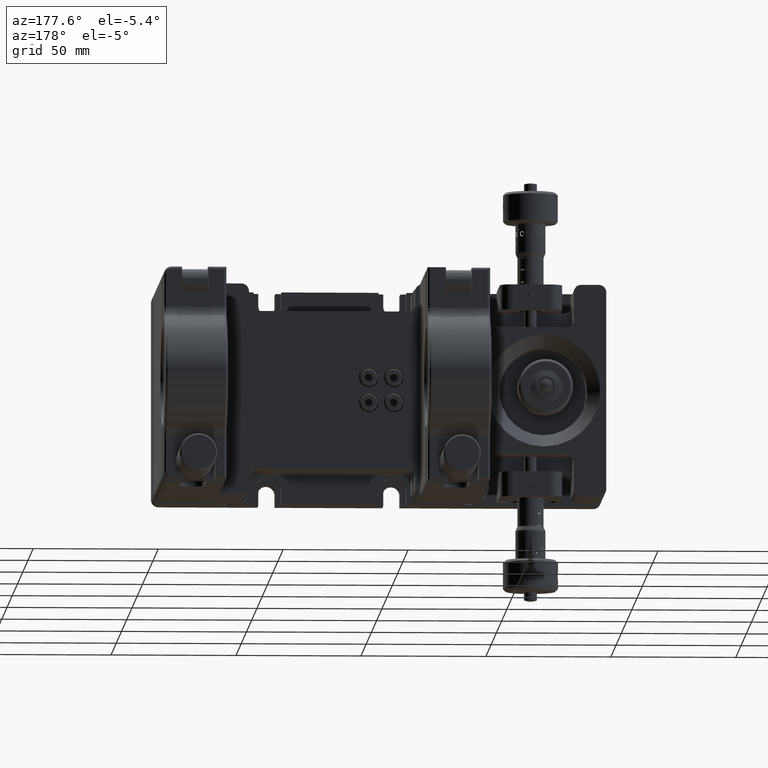
[diagram: clean part render]
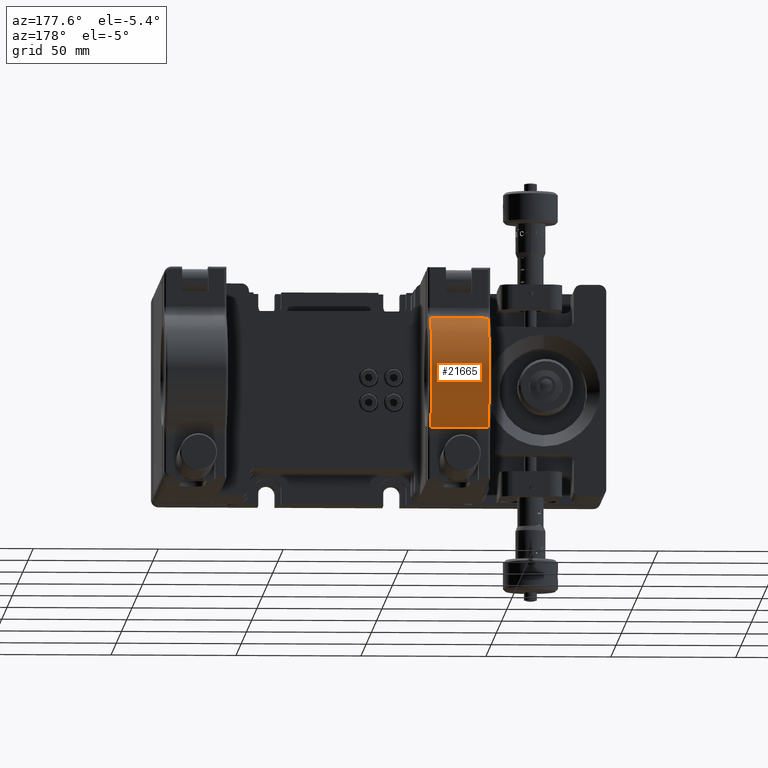
[diagram: same view with one face highlighted and labeled with its STEP entity id]
A machine part, auxiliary view. The second image highlights one B-rep face of the part: STEP entity #21665.
In plain terms, the highlighted cylindrical surface (partial cylindrical patch) has radius 25 mm, axis along (1, 0, -0).
Its self-contained STEP definition (entity closure, byte-faithful):
#1989 = EDGE_CURVE ( 'NONE', #6443, #28217, #40553, .T. ) ;
#3054 = CARTESIAN_POINT ( 'NONE',  ( -39.50000000000003553, 108.2999999999999545, -1.926107624960344001E-13 ) ) ;
#3217 = ORIENTED_EDGE ( 'NONE', *, *, #16254, .T. ) ;
#6443 = VERTEX_POINT ( 'NONE', #25448 ) ;
#7899 = VECTOR ( 'NONE', #47908, 1000.000000000000000 ) ;
#12408 = DIRECTION ( 'NONE',  ( -1.000000000000000000, -8.985754444169092279E-17, 8.951173136040324607E-16 ) ) ;
#15761 = CARTESIAN_POINT ( 'NONE',  ( -39.50000000000006395, 120.3833333333332689, -21.88590997778169722 ) ) ;
#15827 = AXIS2_PLACEMENT_3D ( 'NONE', #42011, #12408, #15888 ) ;
#15888 = DIRECTION ( 'NONE',  ( -9.714451465470121701E-16, -1.665334536937735008E-15, -1.000000000000000000 ) ) ;
#16254 = EDGE_CURVE ( 'NONE', #25030, #18170, #44519, .T. ) ;
#18033 = LINE ( 'NONE', #34982, #7899 ) ;
#18170 = VERTEX_POINT ( 'NONE', #54548 ) ;
#18536 = CARTESIAN_POINT ( 'NONE',  ( -40.50000000000003553, 108.2999999999999545, -1.917156451824303677E-13 ) ) ;
#21665 = ADVANCED_FACE ( 'NONE', ( #41505 ), #36920, .T. ) ;
#22847 = DIRECTION ( 'NONE',  ( 1.000000000000000000, 8.985754444169092279E-17, -8.951173136040324607E-16 ) ) ;
#23457 = DIRECTION ( 'NONE',  ( -1.000000000000000000, -8.985754444169092279E-17, 8.951173136040324607E-16 ) ) ;
#23661 = ORIENTED_EDGE ( 'NONE', *, *, #34378, .T. ) ;
#25030 = VERTEX_POINT ( 'NONE', #15761 ) ;
#25448 = CARTESIAN_POINT ( 'NONE',  ( -16.50000000000001421, 120.3833333333333400, 21.88590997778125313 ) ) ;
#28217 = VERTEX_POINT ( 'NONE', #51224 ) ;
#28399 = ORIENTED_EDGE ( 'NONE', *, *, #1989, .T. ) ;
#32493 = ORIENTED_EDGE ( 'NONE', *, *, #50378, .T. ) ;
#34378 = EDGE_CURVE ( 'NONE', #28217, #25030, #36384, .T. ) ;
#34982 = CARTESIAN_POINT ( 'NONE',  ( -40.50000000000001421, 120.3833333333333400, 21.88590997778127445 ) ) ;
#36384 = LINE ( 'NONE', #37248, #52356 ) ;
#36920 = CYLINDRICAL_SURFACE ( 'NONE', #40355, 24.99999999999999645 ) ;
#37248 = CARTESIAN_POINT ( 'NONE',  ( -40.50000000000006395, 120.3833333333332689, -21.88590997778169722 ) ) ;
#39656 = EDGE_LOOP ( 'NONE', ( #23661, #3217, #32493, #28399 ) ) ;
#40355 = AXIS2_PLACEMENT_3D ( 'NONE', #18536, #22847, #54440 ) ;
#40553 = CIRCLE ( 'NONE', #15827, 24.99999999999999645 ) ;
#41505 = FACE_OUTER_BOUND ( 'NONE', #39656, .T. ) ;
#42011 = CARTESIAN_POINT ( 'NONE',  ( -16.50000000000003553, 108.2999999999999545, -2.131984607089271467E-13 ) ) ;
#44519 = CIRCLE ( 'NONE', #45443, 24.99999999999999645 ) ;
#45443 = AXIS2_PLACEMENT_3D ( 'NONE', #3054, #52075, #50999 ) ;
#47908 = DIRECTION ( 'NONE',  ( 1.000000000000000000, 8.985754444169092279E-17, -8.951173136040324607E-16 ) ) ;
#50378 = EDGE_CURVE ( 'NONE', #18170, #6443, #18033, .T. ) ;
#50999 = DIRECTION ( 'NONE',  ( -8.326672684688675039E-16, -1.665334536937735008E-15, -1.000000000000000000 ) ) ;
#51224 = CARTESIAN_POINT ( 'NONE',  ( -16.50000000000006040, 120.3833333333332689, -21.88590997778171854 ) ) ;
#52075 = DIRECTION ( 'NONE',  ( 1.000000000000000000, 8.985754444169092279E-17, -8.951173136040324607E-16 ) ) ;
#52356 = VECTOR ( 'NONE', #23457, 1000.000000000000000 ) ;
#54440 = DIRECTION ( 'NONE',  ( -8.326672684688675039E-16, -1.665334536937735008E-15, -1.000000000000000000 ) ) ;
#54548 = CARTESIAN_POINT ( 'NONE',  ( -39.50000000000001421, 120.3833333333333400, 21.88590997778127445 ) ) ;